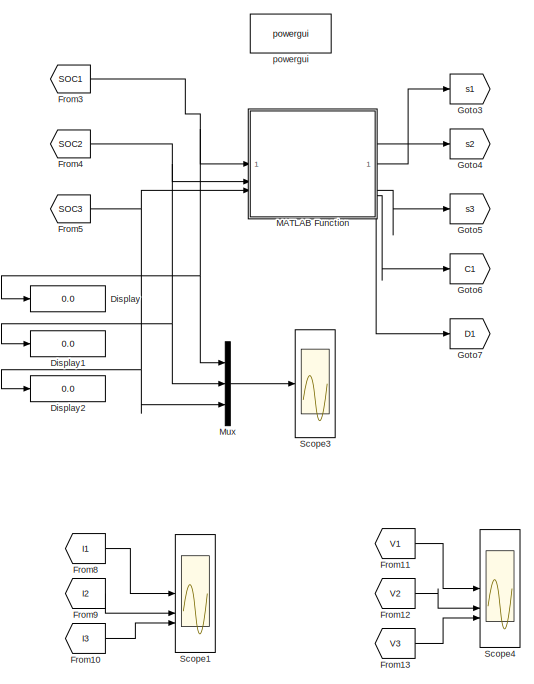
[diagram: root canvas - part 1/2, right side, full height]
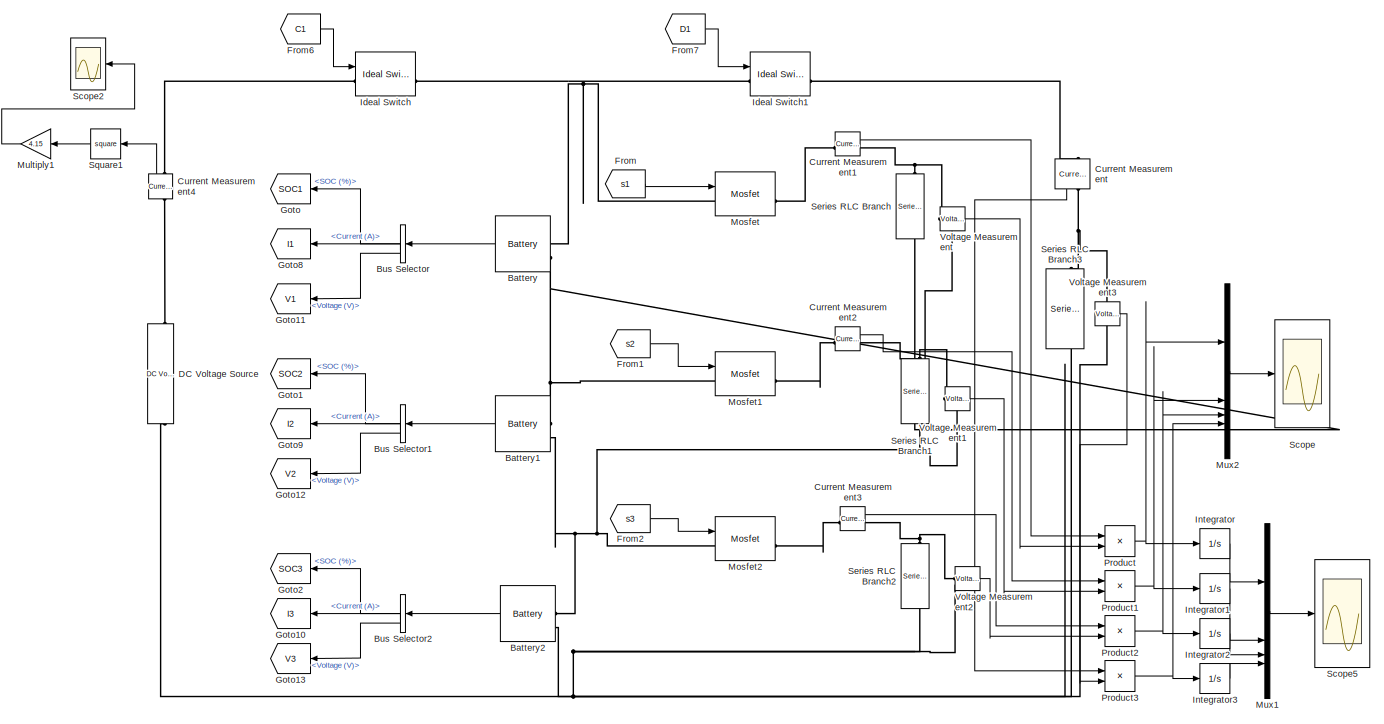
[diagram: root canvas - part 2/2, center side, full height]
MODEL slx_62c7ec2b65b0
KIND model
CONFIG AbsTol = auto
CONFIG EnableMultiTasking = off
CONFIG FixedStep = auto
CONFIG MaxStep = auto
CONFIG MinStep = auto
CONFIG RelTol = 1e-3
CONFIG SampleTimeConstraint = Unconstrained
CONFIG SolverName = VariableStepAuto
CONFIG StartTime = 0.0
CONFIG StopTime = 3000
BLOCK [Reference] Battery  REF=spsBatteryLib/Battery
  LibrarySourceBlock = sps_lib/Sources/Battery
  SourceBlock = spsBatteryLib/Battery
  SourceType = Battery
BLOCK [Reference] Battery1  REF=spsBatteryLib/Battery
  LibrarySourceBlock = sps_lib/Sources/Battery
  SourceBlock = spsBatteryLib/Battery
  SourceType = Battery
BLOCK [Reference] Battery2  REF=spsBatteryLib/Battery
  LibrarySourceBlock = sps_lib/Sources/Battery
  SourceBlock = spsBatteryLib/Battery
  SourceType = Battery
BLOCK [BusSelector] Bus Selector
  NameLocation = top
  OutputSignals = SOC (%),Current (A),Voltage (V)
BLOCK [BusSelector] Bus Selector1
  NameLocation = top
  OutputSignals = SOC (%),Current (A),Voltage (V)
BLOCK [BusSelector] Bus Selector2
  NameLocation = top
  OutputSignals = SOC (%),Current (A),Voltage (V)
BLOCK [Reference] Current Measurement  REF=spsCurrentMeasurementLib/Current Measurement
  LibrarySourceBlock = sps_lib/Sensors and Measurements/Current Measurement
  NameLocation = left
  SourceBlock = spsCurrentMeasurementLib/Current Measurement
  SourceType = Current Measurement
  UserDataPersistent = on
BLOCK [Reference] Current Measurement1  REF=spsCurrentMeasurementLib/Current Measurement
  LibrarySourceBlock = sps_lib/Sensors and Measurements/Current Measurement
  SourceBlock = spsCurrentMeasurementLib/Current Measurement
  SourceType = Current Measurement
  UserDataPersistent = on
BLOCK [Reference] Current Measurement2  REF=spsCurrentMeasurementLib/Current Measurement
  LibrarySourceBlock = sps_lib/Sensors and Measurements/Current Measurement
  SourceBlock = spsCurrentMeasurementLib/Current Measurement
  SourceType = Current Measurement
  UserDataPersistent = on
BLOCK [Reference] Current Measurement3  REF=spsCurrentMeasurementLib/Current Measurement
  LibrarySourceBlock = sps_lib/Sensors and Measurements/Current Measurement
  SourceBlock = spsCurrentMeasurementLib/Current Measurement
  SourceType = Current Measurement
  UserDataPersistent = on
BLOCK [Reference] Current Measurement4  REF=spsCurrentMeasurementLib/Current Measurement
  LibrarySourceBlock = sps_lib/Sensors and Measurements/Current Measurement
  NameLocation = right
  SourceBlock = spsCurrentMeasurementLib/Current Measurement
  SourceType = Current Measurement
  UserDataPersistent = on
BLOCK [Reference] DC Voltage Source  REF=spsDCVoltageSourceLib/DC Voltage Source
  LibrarySourceBlock = sps_lib/Sources/DC Voltage Source
  SourceBlock = spsDCVoltageSourceLib/DC Voltage Source
  SourceType = DC Voltage Source
BLOCK [Display] Display
  Decimation = 1
BLOCK [Display] Display1
  Decimation = 1
BLOCK [Display] Display2
  Decimation = 1
BLOCK [From] From
  GotoTag = s1
BLOCK [From] From1
  GotoTag = s2
BLOCK [From] From10
  GotoTag = I3
BLOCK [From] From11
  GotoTag = V1
BLOCK [From] From12
  GotoTag = V2
BLOCK [From] From13
  GotoTag = V3
BLOCK [From] From2
  GotoTag = s3
BLOCK [From] From3
  GotoTag = SOC1
BLOCK [From] From4
  GotoTag = SOC2
BLOCK [From] From5
  GotoTag = SOC3
BLOCK [From] From6
  GotoTag = C1
BLOCK [From] From7
  GotoTag = D1
BLOCK [From] From8
  GotoTag = I1
BLOCK [From] From9
  GotoTag = I2
BLOCK [Goto] Goto
  GotoTag = SOC1
  NameLocation = top
BLOCK [Goto] Goto1
  GotoTag = SOC2
  NameLocation = top
BLOCK [Goto] Goto10
  GotoTag = I3
  NameLocation = top
BLOCK [Goto] Goto11
  GotoTag = V1
  NameLocation = top
BLOCK [Goto] Goto12
  GotoTag = V2
  NameLocation = top
BLOCK [Goto] Goto13
  GotoTag = V3
  NameLocation = top
BLOCK [Goto] Goto2
  GotoTag = SOC3
  NameLocation = top
BLOCK [Goto] Goto3
  GotoTag = s1
BLOCK [Goto] Goto4
  GotoTag = s2
BLOCK [Goto] Goto5
  GotoTag = s3
BLOCK [Goto] Goto6
  GotoTag = C1
BLOCK [Goto] Goto7
  GotoTag = D1
BLOCK [Goto] Goto8
  GotoTag = I1
  NameLocation = top
BLOCK [Goto] Goto9
  GotoTag = I2
  NameLocation = top
BLOCK [Reference] Ideal Switch  REF=spsIdealSwitchLib/Ideal Switch
  LibrarySourceBlock = sps_lib/Power Electronics/Ideal Switch
  SourceBlock = spsIdealSwitchLib/Ideal Switch
  SourceType = Ideal Switch
BLOCK [Reference] Ideal Switch1  REF=spsIdealSwitchLib/Ideal Switch
  LibrarySourceBlock = sps_lib/Power Electronics/Ideal Switch
  SourceBlock = spsIdealSwitchLib/Ideal Switch
  SourceType = Ideal Switch
BLOCK [Integrator] Integrator
BLOCK [Integrator] Integrator1
BLOCK [Integrator] Integrator2
BLOCK [Integrator] Integrator3
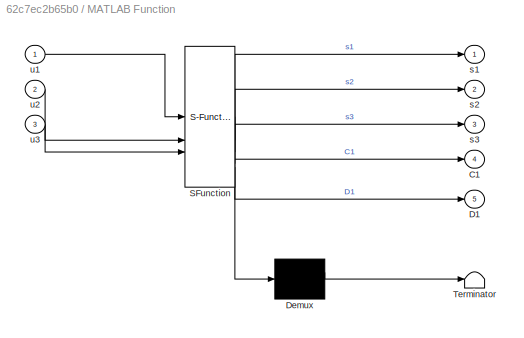
BLOCK [SubSystem] MATLAB Function
  ErrorFcn = Stateflow.Translate.translate
  PermitHierarchicalResolution = ExplicitOnly
  SFBlockType = MATLAB Function
  TreatAsAtomicUnit = on
BLOCK [Demux] MATLAB Function/ Demux 
  Outputs = 1
BLOCK [S-Function] MATLAB Function/ SFunction 
  EnableBusSupport = on
  FunctionName = sf_sfun
  PortCounts = [3 6]
  SFcnIsStateOwnerBlock = off
  SFunctionDeploymentMode = off
  Tag = Stateflow S-Function 2
BLOCK [Terminator] MATLAB Function/ Terminator 
BLOCK [Outport] MATLAB Function/C1
  Port = 4
BLOCK [Outport] MATLAB Function/D1
  Port = 5
BLOCK [Outport] MATLAB Function/s1
BLOCK [Outport] MATLAB Function/s2
  Port = 2
BLOCK [Outport] MATLAB Function/s3
  Port = 3
BLOCK [Inport] MATLAB Function/u1
BLOCK [Inport] MATLAB Function/u2
  Port = 2
BLOCK [Inport] MATLAB Function/u3
  Port = 3
BLOCK [Reference] Mosfet  REF=spsMosfetLib/Mosfet
  LibrarySourceBlock = sps_lib/Power Electronics/Mosfet
  SourceBlock = spsMosfetLib/Mosfet
  SourceType = Mosfet
BLOCK [Reference] Mosfet1  REF=spsMosfetLib/Mosfet
  LibrarySourceBlock = sps_lib/Power Electronics/Mosfet
  SourceBlock = spsMosfetLib/Mosfet
  SourceType = Mosfet
BLOCK [Reference] Mosfet2  REF=spsMosfetLib/Mosfet
  LibrarySourceBlock = sps_lib/Power Electronics/Mosfet
  SourceBlock = spsMosfetLib/Mosfet
  SourceType = Mosfet
BLOCK [Gain] Multiply1
  Gain = 4.15
  NameLocation = top
BLOCK [Mux] Mux
  DisplayOption = bar
  Inputs = 3
BLOCK [Mux] Mux1
  DisplayOption = bar
BLOCK [Mux] Mux2
  DisplayOption = bar
BLOCK [Product] Product
BLOCK [Product] Product1
BLOCK [Product] Product2
BLOCK [Product] Product3
BLOCK [Scope] Scope
  Floating = off
  NumInputPorts = 1
  ScopeSpecificationString = Simulink.scopes.TimeScopeBlockCfg('CurrentConfiguration', extmgr.ConfigurationSet(extmgr.Configuration('Core','General UI',true,'FigureColor',[1 1 1]),extmgr.Configuration('Core','Source UI',true),extmgr.Configuration('Sources','WiredSimulink',true,'DataLoggingVariableName','ScopeData1'),extmgr.Configuration('Visuals','Time Domain',true,'SerializedDisplays',{struct('MinYLimReal','-1.3266','MaxYLim...<+1980ch>
BLOCK [Scope] Scope1
  Floating = off
  NumInputPorts = 3
  ScopeSpecificationString = Simulink.scopes.TimeScopeBlockCfg('CurrentConfiguration', extmgr.ConfigurationSet(extmgr.Configuration('Core','General UI',true,'FigureColor',[1 1 1]),extmgr.Configuration('Core','Source UI',true),extmgr.Configuration('Sources','WiredSimulink',true,'DataLoggingVariableName','ScopeData1'),extmgr.Configuration('Visuals','Time Domain',true,'SerializedDisplays',{struct('MinYLimReal','-11.52749','MaxYL...<+3278ch>
BLOCK [Scope] Scope2
  Floating = off
  NameLocation = top
  NumInputPorts = 1
  ScopeSpecificationString = Simulink.scopes.TimeScopeBlockCfg('CurrentConfiguration', extmgr.ConfigurationSet(extmgr.Configuration('Core','General UI',true),extmgr.Configuration('Core','Source UI',true),extmgr.Configuration('Sources','WiredSimulink',true,'DataLoggingVariableName','ScopeData2'),extmgr.Configuration('Visuals','Time Domain',true,'SerializedDisplays',{struct('MinYLimReal','-3.91016','MaxYLimReal','35.19148','YLa...<+1400ch>
BLOCK [Scope] Scope3
  Floating = off
  NumInputPorts = 1
  ScopeSpecificationString = Simulink.scopes.TimeScopeBlockCfg('CurrentConfiguration', extmgr.ConfigurationSet(extmgr.Configuration('Core','General UI',true,'FigureColor',[1 1 1]),extmgr.Configuration('Core','Source UI',true),extmgr.Configuration('Sources','WiredSimulink',true,'DataLoggingVariableName','ScopeData3'),extmgr.Configuration('Visuals','Time Domain',true,'SerializedDisplays',{struct('MinYLimReal','46.16953','MaxYLi...<+1864ch>
BLOCK [Scope] Scope4
  Floating = off
  NumInputPorts = 3
  ScopeSpecificationString = Simulink.scopes.TimeScopeBlockCfg('CurrentConfiguration', extmgr.ConfigurationSet(extmgr.Configuration('Core','General UI',true,'FigureColor',[1 1 1]),extmgr.Configuration('Core','Source UI',true),extmgr.Configuration('Sources','WiredSimulink',true,'DataLoggingVariableName','ScopeData1'),extmgr.Configuration('Visuals','Time Domain',true,'SerializedDisplays',{struct('MinYLimReal','3.76569','MaxYLim...<+3173ch>
BLOCK [Scope] Scope5
  Floating = off
  NumInputPorts = 1
  ScopeSpecificationString = Simulink.scopes.TimeScopeBlockCfg('CurrentConfiguration', extmgr.ConfigurationSet(extmgr.Configuration('Core','General UI',true,'FigureColor',[1 1 1]),extmgr.Configuration('Core','Source UI',true),extmgr.Configuration('Sources','WiredSimulink',true,'DataLoggingVariableName','ScopeData2'),extmgr.Configuration('Visuals','Time Domain',true,'SerializedDisplays',{struct('MinYLimReal','-719.84098','MaxY...<+1994ch>
BLOCK [Reference] Series RLC Branch  REF=spsSeriesRLCBranchLib/Series RLC Branch
  LibrarySourceBlock = sps_lib/Passives/Series RLC Branch
  NameLocation = right
  SourceBlock = spsSeriesRLCBranchLib/Series RLC Branch
  SourceType = Series RLC Branch
BLOCK [Reference] Series RLC Branch1  REF=spsSeriesRLCBranchLib/Series RLC Branch
  LibrarySourceBlock = sps_lib/Passives/Series RLC Branch
  NameLocation = right
  SourceBlock = spsSeriesRLCBranchLib/Series RLC Branch
  SourceType = Series RLC Branch
BLOCK [Reference] Series RLC Branch2  REF=spsSeriesRLCBranchLib/Series RLC Branch
  LibrarySourceBlock = sps_lib/Passives/Series RLC Branch
  NameLocation = right
  SourceBlock = spsSeriesRLCBranchLib/Series RLC Branch
  SourceType = Series RLC Branch
BLOCK [Reference] Series RLC Branch3  REF=spsSeriesRLCBranchLib/Series RLC Branch
  LibrarySourceBlock = sps_lib/Passives/Series RLC Branch
  NameLocation = right
  SourceBlock = spsSeriesRLCBranchLib/Series RLC Branch
  SourceType = Series RLC Branch
BLOCK [Math] Square1
  NameLocation = top
  Operator = square
BLOCK [Reference] Voltage Measurement  REF=spsVoltageMeasurementLib/Voltage Measurement
  LibrarySourceBlock = sps_lib/Sensors and Measurements/Voltage Measurement
  SourceBlock = spsVoltageMeasurementLib/Voltage Measurement
  SourceType = Voltage Measurement
  UserDataPersistent = on
BLOCK [Reference] Voltage Measurement1  REF=spsVoltageMeasurementLib/Voltage Measurement
  LibrarySourceBlock = sps_lib/Sensors and Measurements/Voltage Measurement
  SourceBlock = spsVoltageMeasurementLib/Voltage Measurement
  SourceType = Voltage Measurement
  UserDataPersistent = on
BLOCK [Reference] Voltage Measurement2  REF=spsVoltageMeasurementLib/Voltage Measurement
  LibrarySourceBlock = sps_lib/Sensors and Measurements/Voltage Measurement
  SourceBlock = spsVoltageMeasurementLib/Voltage Measurement
  SourceType = Voltage Measurement
  UserDataPersistent = on
BLOCK [Reference] Voltage Measurement3  REF=spsVoltageMeasurementLib/Voltage Measurement
  LibrarySourceBlock = sps_lib/Sensors and Measurements/Voltage Measurement
  SourceBlock = spsVoltageMeasurementLib/Voltage Measurement
  SourceType = Voltage Measurement
  UserDataPersistent = on
BLOCK [Reference] powergui  REF=sps_lib/powergui
  LibrarySourceBlock = sps_lib/powergui
  Priority = 1
  SourceBlock = sps_lib/powergui
  SourceType = PSB option menu block
LINE Battery1:1 -> Bus Selector1:1
LINE Battery2:1 -> Bus Selector2:1
LINE Battery:1 -> Bus Selector:1
LINE Bus Selector1:1 -> Goto1:1
LINE Bus Selector1:2 -> Goto9:1
LINE Bus Selector1:3 -> Goto12:1
LINE Bus Selector2:1 -> Goto2:1
LINE Bus Selector2:2 -> Goto10:1
LINE Bus Selector2:3 -> Goto13:1
LINE Bus Selector:1 -> Goto:1
LINE Bus Selector:2 -> Goto8:1
LINE Bus Selector:3 -> Goto11:1
LINE Current Measurement1:1 -> Product:1
LINE Current Measurement2:1 -> Product1:1
LINE Current Measurement3:1 -> Product2:1
LINE Current Measurement4:1 -> Square1:1
LINE Current Measurement:1 -> Product3:1
LINE From10:1 -> Scope1:3
LINE From11:1 -> Scope4:1
LINE From12:1 -> Scope4:2
LINE From13:1 -> Scope4:3
LINE From1:1 -> Mosfet1:1
LINE From2:1 -> Mosfet2:1
NET From3:1 -> Display:1, MATLAB Function:1, Mux:1
NET From4:1 -> Display1:1, MATLAB Function:2, Mux:2
NET From5:1 -> Display2:1, MATLAB Function:3, Mux:3
LINE From6:1 -> Ideal Switch:1
LINE From7:1 -> Ideal Switch1:1
LINE From8:1 -> Scope1:1
LINE From9:1 -> Scope1:2
LINE From:1 -> Mosfet:1
LINE Integrator1:1 -> Mux1:2
LINE Integrator2:1 -> Mux1:3
LINE Integrator3:1 -> Mux1:4
LINE Integrator:1 -> Mux1:1
LINE MATLAB Function:1 -> Goto3:1
LINE MATLAB Function:2 -> Goto4:1
LINE MATLAB Function:3 -> Goto5:1
LINE MATLAB Function:4 -> Goto6:1
LINE MATLAB Function:5 -> Goto7:1
LINE Multiply1:1 -> Scope2:1
LINE Mux1:1 -> Scope5:1
LINE Mux2:1 -> Scope:1
LINE Mux:1 -> Scope3:1
NET Product1:1 -> Integrator1:1, Mux2:2
NET Product2:1 -> Integrator2:1, Mux2:3
NET Product3:1 -> Integrator3:1, Mux2:4
NET Product:1 -> Integrator:1, Mux2:1
LINE Square1:1 -> Multiply1:1
LINE Voltage Measurement1:1 -> Product1:2
LINE Voltage Measurement2:1 -> Product2:2
LINE Voltage Measurement3:1 -> Product3:2
LINE Voltage Measurement:1 -> Product:2
PNET net1: Battery1:LConn1 -- Battery:LConn2 -- Mosfet1:LConn1 -- Series RLC Branch:LConn1 -- Voltage Measurement:LConn2
PNET net2: Battery1:LConn2 -- Battery2:LConn1 -- Mosfet2:LConn1 -- Series RLC Branch1:LConn1 -- Voltage Measurement1:LConn2
PNET net3: Battery2:LConn2 -- DC Voltage Source:LConn1 -- Series RLC Branch2:LConn1 -- Series RLC Branch3:LConn1 -- Voltage Measurement2:LConn2 -- Voltage Measurement3:LConn2
PNET net4: Battery:LConn1 -- Ideal Switch1:LConn1 -- Ideal Switch:RConn1 -- Mosfet:LConn1
PLINE Current Measurement1:LConn1 -- Mosfet:RConn1
PNET net5: Current Measurement1:RConn1 -- Series RLC Branch:RConn1 -- Voltage Measurement:LConn1
PLINE Current Measurement2:LConn1 -- Mosfet1:RConn1
PNET net6: Current Measurement2:RConn1 -- Series RLC Branch1:RConn1 -- Voltage Measurement1:LConn1
PLINE Current Measurement3:LConn1 -- Mosfet2:RConn1
PNET net7: Current Measurement3:RConn1 -- Series RLC Branch2:RConn1 -- Voltage Measurement2:LConn1
PLINE Current Measurement4:LConn1 -- DC Voltage Source:RConn1
PLINE Current Measurement4:RConn1 -- Ideal Switch:LConn1
PLINE Current Measurement:LConn1 -- Ideal Switch1:RConn1
PNET net8: Current Measurement:RConn1 -- Series RLC Branch3:RConn1 -- Voltage Measurement3:LConn1
note: NET lines group one-source signal fan-out (src -> all destinations, sorted); 1:1 wires keep LINE; PNET lines group multi-terminal physical nets as a canonical sorted terminal list (undirected conserving connections); 2-terminal nets keep the pairwise PLINE form
CHART MATLAB Function states=1 transitions=1
  STATE_LABEL 'eML_blk_kernel()'
  STATE_LABEL 'SCRIPT:\nfunction [s1,s2,s3,C1,D1]  = fcn(u1,u2,u3)\nu1 = int32(u1);\nu2 = int32(u2);\nu3 = int32(u3);\n\nmean = (u1+u2+u3)/3;\n\nif(u1>mean)\n    \n      s1 = 1;\nelse\n      s1 = 0;  \n\nend\nif(u2>mean)\n    \n      s2 = 1;\nelse\n      s2 = 0;  \n\nend\nif(u3>mean)\n    \n      s3 = 1;\nelse\n      s3 = 0;  \n\nend\n\nif((u1==u2)||(u2==u3))\n    D1=0;\n    C1=1;\nelse\n    D1=0;\n    C1=0;\nend\n\n\n\n\n\n\n'
CHART  states=0 transitions=0
